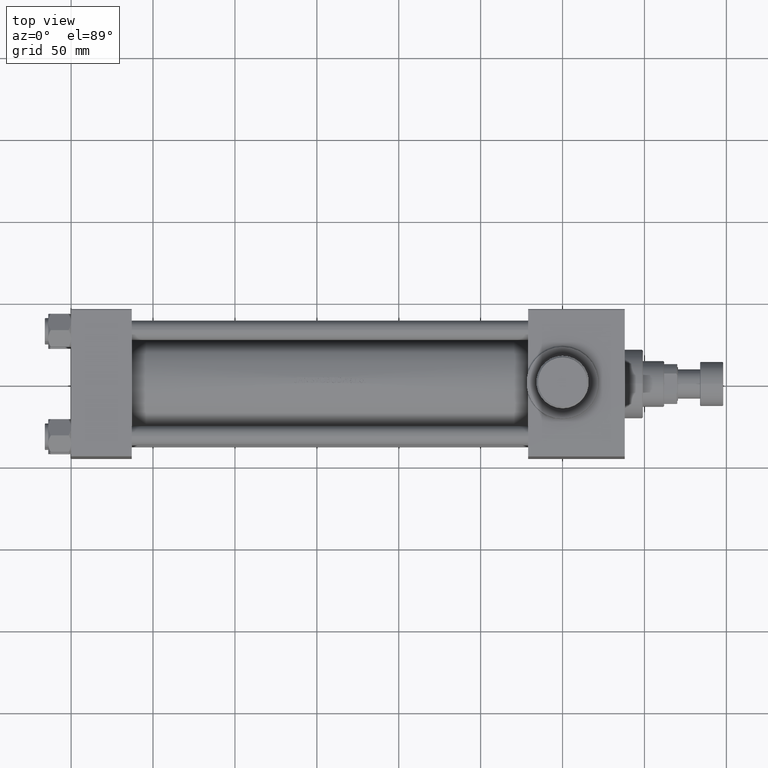
[diagram: clean part render]
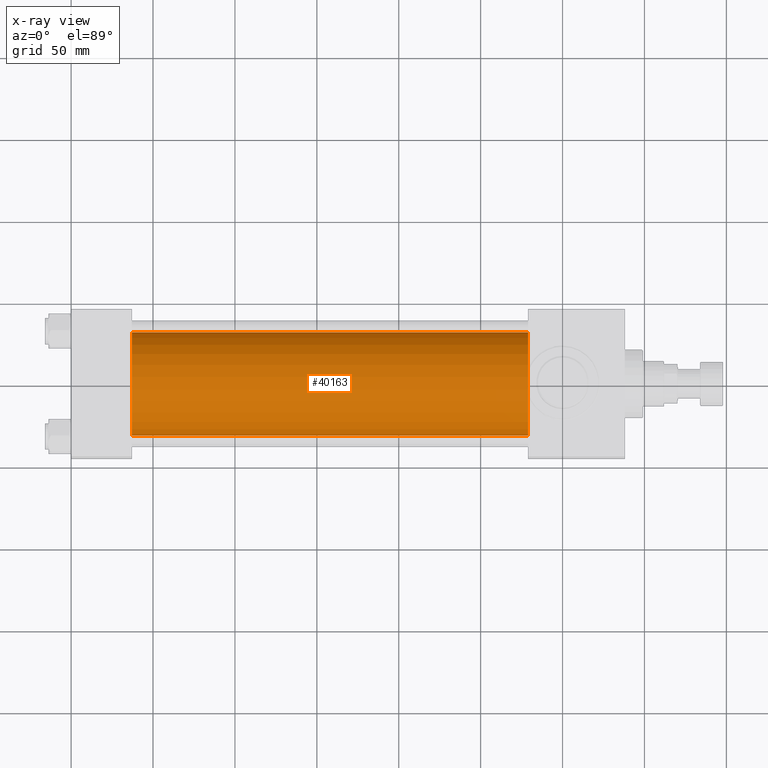
[diagram: x-ray — body ghosted, one internal face saturated and labeled with its STEP entity id]
A machine part, top view, then the same camera in x-ray: the body is ghosted and one INTERNAL B-rep face — a face not visible from any outside direction — is saturated and labeled: STEP entity #40163.
In plain terms, the highlighted cylindrical surface (partial cylindrical patch) has radius 31.5 mm, axis along (-1, -0, 0).
Its self-contained STEP definition (entity closure, byte-faithful):
#1183 = CIRCLE ( 'NONE', #25453, 31.50000000000000000 ) ;
#2536 = VERTEX_POINT ( 'NONE', #17174 ) ;
#3128 = DIRECTION ( 'NONE',  ( -1.000000000000000000, -0.000000000000000000, -0.000000000000000000 ) ) ;
#4028 = CIRCLE ( 'NONE', #29092, 31.50000000000000000 ) ;
#4709 = CARTESIAN_POINT ( 'NONE',  ( 37.00000000000000000, 3.881904653605483521E-16, -31.50000000000000000 ) ) ;
#5580 = ORIENTED_EDGE ( 'NONE', *, *, #24084, .F. ) ;
#8988 = EDGE_LOOP ( 'NONE', ( #28363, #10493, #5580, #24073 ) ) ;
#9788 = CARTESIAN_POINT ( 'NONE',  ( 278.9999999999999432, -3.469446951953614189E-15, 0.000000000000000000 ) ) ;
#10465 = AXIS2_PLACEMENT_3D ( 'NONE', #28730, #25880, #25167 ) ;
#10493 = ORIENTED_EDGE ( 'NONE', *, *, #44559, .T. ) ;
#13272 = LINE ( 'NONE', #20632, #42193 ) ;
#13846 = LINE ( 'NONE', #46433, #38084 ) ;
#14234 = CYLINDRICAL_SURFACE ( 'NONE', #10465, 31.50000000000000000 ) ;
#15311 = VERTEX_POINT ( 'NONE', #46046 ) ;
#17174 = CARTESIAN_POINT ( 'NONE',  ( 37.00000000000000000, -3.469446951953614189E-15, 31.50000000000000000 ) ) ;
#20632 = CARTESIAN_POINT ( 'NONE',  ( 278.9999999999999432, -3.469446951953614189E-15, 31.50000000000000000 ) ) ;
#23687 = CARTESIAN_POINT ( 'NONE',  ( 37.00000000000000000, -3.469446951953614189E-15, 0.000000000000000000 ) ) ;
#24073 = ORIENTED_EDGE ( 'NONE', *, *, #34038, .F. ) ;
#24084 = EDGE_CURVE ( 'NONE', #2536, #44032, #4028, .T. ) ;
#24184 = VERTEX_POINT ( 'NONE', #31524 ) ;
#24299 = DIRECTION ( 'NONE',  ( 1.000000000000000000, 0.000000000000000000, 0.000000000000000000 ) ) ;
#24540 = DIRECTION ( 'NONE',  ( 0.000000000000000000, 0.000000000000000000, -1.000000000000000000 ) ) ;
#25167 = DIRECTION ( 'NONE',  ( 0.000000000000000000, 0.000000000000000000, 1.000000000000000000 ) ) ;
#25453 = AXIS2_PLACEMENT_3D ( 'NONE', #9788, #24299, #24540 ) ;
#25880 = DIRECTION ( 'NONE',  ( -1.000000000000000000, -0.000000000000000000, -0.000000000000000000 ) ) ;
#28363 = ORIENTED_EDGE ( 'NONE', *, *, #29761, .T. ) ;
#28730 = CARTESIAN_POINT ( 'NONE',  ( 278.9999999999999432, -3.469446951953614189E-15, 0.000000000000000000 ) ) ;
#29092 = AXIS2_PLACEMENT_3D ( 'NONE', #23687, #34168, #41067 ) ;
#29761 = EDGE_CURVE ( 'NONE', #24184, #15311, #1183, .T. ) ;
#31524 = CARTESIAN_POINT ( 'NONE',  ( 278.9999999999999432, -3.469446951953614189E-15, 31.50000000000000000 ) ) ;
#34038 = EDGE_CURVE ( 'NONE', #24184, #2536, #13272, .T. ) ;
#34168 = DIRECTION ( 'NONE',  ( 1.000000000000000000, 0.000000000000000000, 0.000000000000000000 ) ) ;
#38084 = VECTOR ( 'NONE', #3128, 1000.000000000000000 ) ;
#39417 = DIRECTION ( 'NONE',  ( -1.000000000000000000, -0.000000000000000000, -0.000000000000000000 ) ) ;
#40163 = ADVANCED_FACE ( 'NONE', ( #46818 ), #14234, .F. ) ;
#41067 = DIRECTION ( 'NONE',  ( 0.000000000000000000, 0.000000000000000000, -1.000000000000000000 ) ) ;
#42193 = VECTOR ( 'NONE', #39417, 1000.000000000000000 ) ;
#44032 = VERTEX_POINT ( 'NONE', #4709 ) ;
#44559 = EDGE_CURVE ( 'NONE', #15311, #44032, #13846, .T. ) ;
#46046 = CARTESIAN_POINT ( 'NONE',  ( 278.9999999999999432, 3.881904653605483521E-16, -31.50000000000000000 ) ) ;
#46433 = CARTESIAN_POINT ( 'NONE',  ( 278.9999999999999432, 3.881904653605483521E-16, -31.50000000000000000 ) ) ;
#46818 = FACE_OUTER_BOUND ( 'NONE', #8988, .T. ) ;